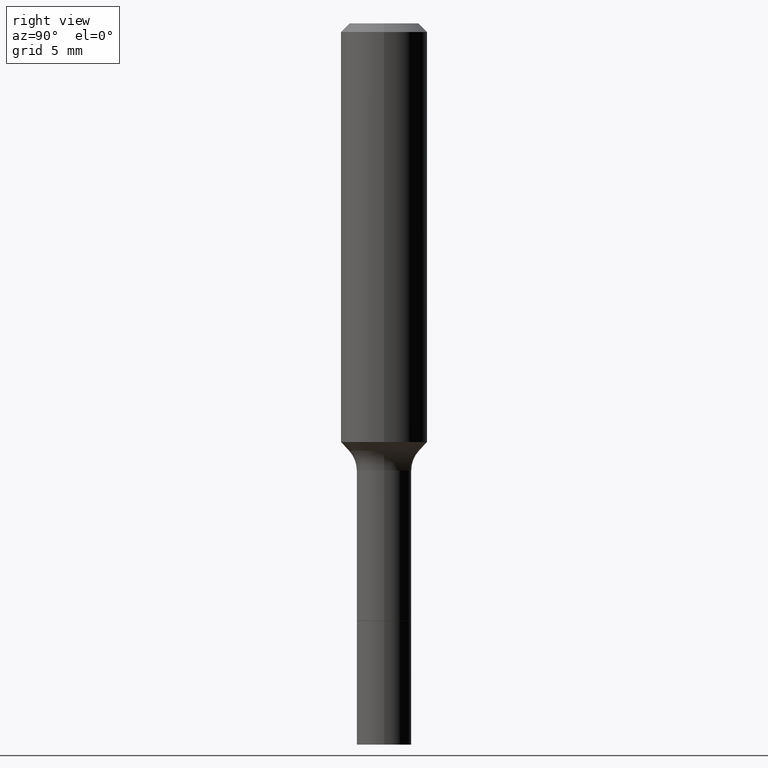
[diagram: clean part render]
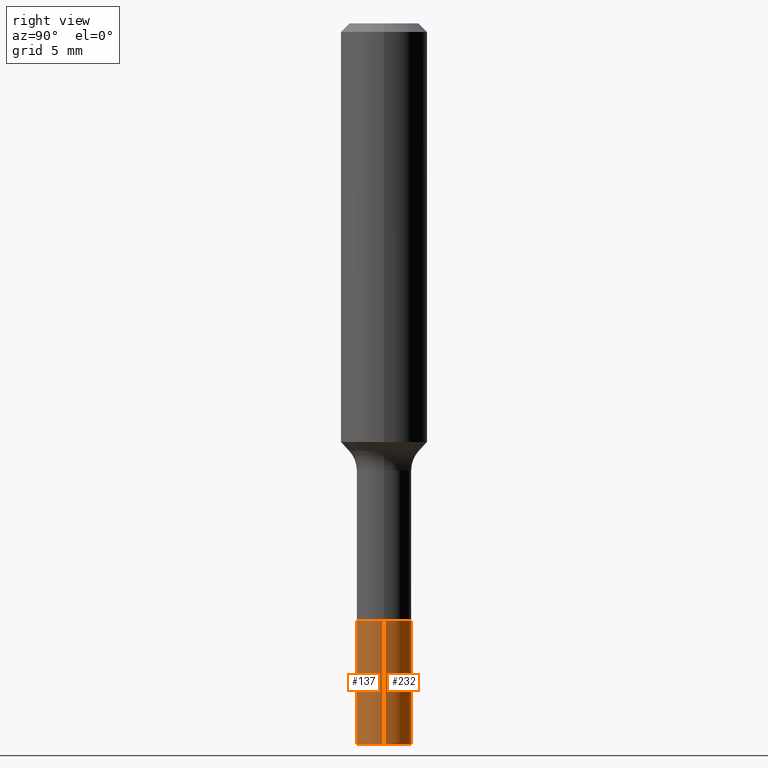
[diagram: same view with one multi-face feature highlighted, each face labeled with its STEP entity id]
A machine part, right view. The highlighted faces form ONE feature: a constant-radius fillet chain: 2 tangent blend faces with common blend radius 1.8986 mm. The faces share edges in the B-rep.
Their STEP definitions:
[1] entity #232 (Cylinder):
#12 = EDGE_LOOP ( 'NONE', ( #112, #114, #436, #51 ) ) ;
#29 = VERTEX_POINT ( 'NONE', #372 ) ;
#34 = DIRECTION ( 'NONE',  ( -2.445468806185136877E-29, 3.491481338843145188E-15, 1.000000000000000000 ) ) ;
#51 = ORIENTED_EDGE ( 'NONE', *, *, #128, .F. ) ;
#64 = CARTESIAN_POINT ( 'NONE',  ( -0.07474999999999999700, -5.161729628003073983E-15, -1.630500000000000060 ) ) ;
#67 = CYLINDRICAL_SURFACE ( 'NONE', #388, 0.07474999999999999700 ) ;
#70 = DIRECTION ( 'NONE',  ( 1.000000000000000000, -6.982962677686271444E-15, 0.000000000000000000 ) ) ;
#72 = LINE ( 'NONE', #64, #174 ) ;
#74 = CARTESIAN_POINT ( 'NONE',  ( 0.07474999999999999700, -7.394957475669780996E-15, -1.968500000000000139 ) ) ;
#76 = VERTEX_POINT ( 'NONE', #497 ) ;
#81 = VERTEX_POINT ( 'NONE', #185 ) ;
#88 = AXIS2_PLACEMENT_3D ( 'NONE', #235, #515, #89 ) ;
#89 = DIRECTION ( 'NONE',  ( 1.000000000000000000, -6.982962677686271444E-15, 0.000000000000000000 ) ) ;
#103 = FACE_OUTER_BOUND ( 'NONE', #12, .T. ) ;
#112 = ORIENTED_EDGE ( 'NONE', *, *, #145, .T. ) ;
#114 = ORIENTED_EDGE ( 'NONE', *, *, #496, .T. ) ;
#128 = EDGE_CURVE ( 'NONE', #361, #29, #419, .T. ) ;
#145 = EDGE_CURVE ( 'NONE', #361, #76, #500, .T. ) ;
#148 = CARTESIAN_POINT ( 'NONE',  ( 4.813905344975441835E-29, -6.872981015512731707E-15, -1.968500000000000139 ) ) ;
#160 = AXIS2_PLACEMENT_3D ( 'NONE', #148, #220, #183 ) ;
#174 = VECTOR ( 'NONE', #34, 39.37007874015748143 ) ;
#183 = DIRECTION ( 'NONE',  ( 1.000000000000000000, -6.982962677686271444E-15, 0.000000000000000000 ) ) ;
#185 = CARTESIAN_POINT ( 'NONE',  ( -0.07474999999999999700, -5.751789974267565855E-15, -1.630500000000000060 ) ) ;
#220 = DIRECTION ( 'NONE',  ( -2.445468806185136597E-29, 3.491481338843145583E-15, 1.000000000000000000 ) ) ;
#226 = CIRCLE ( 'NONE', #88, 0.07474999999999999700 ) ;
#227 = CARTESIAN_POINT ( 'NONE',  ( 3.987336888484864983E-29, -5.692860322983748752E-15, -1.630500000000000060 ) ) ;
#232 = ADVANCED_FACE ( 'NONE', ( #103 ), #67, .T. ) ;
#235 = CARTESIAN_POINT ( 'NONE',  ( 3.987336888484864983E-29, -5.692860322983748752E-15, -1.630500000000000060 ) ) ;
#331 = EDGE_CURVE ( 'NONE', #29, #81, #226, .T. ) ;
#343 = DIRECTION ( 'NONE',  ( -2.445468806185136877E-29, 3.491481338843145188E-15, 1.000000000000000000 ) ) ;
#361 = VERTEX_POINT ( 'NONE', #74 ) ;
#372 = CARTESIAN_POINT ( 'NONE',  ( 0.07474999999999999700, -6.214836783140797252E-15, -1.630500000000000060 ) ) ;
#381 = DIRECTION ( 'NONE',  ( -2.445468806185136597E-29, 3.491481338843145583E-15, 1.000000000000000000 ) ) ;
#388 = AXIS2_PLACEMENT_3D ( 'NONE', #227, #381, #70 ) ;
#419 = LINE ( 'NONE', #511, #474 ) ;
#436 = ORIENTED_EDGE ( 'NONE', *, *, #331, .F. ) ;
#474 = VECTOR ( 'NONE', #343, 39.37007874015748143 ) ;
#496 = EDGE_CURVE ( 'NONE', #76, #81, #72, .T. ) ;
#497 = CARTESIAN_POINT ( 'NONE',  ( -0.07474999999999999700, -5.751789974267565855E-15, -1.968500000000000139 ) ) ;
#500 = CIRCLE ( 'NONE', #160, 0.07474999999999999700 ) ;
#511 = CARTESIAN_POINT ( 'NONE',  ( 0.07474999999999999700, -6.214836783140797252E-15, -1.630500000000000060 ) ) ;
#515 = DIRECTION ( 'NONE',  ( -2.445468806185136597E-29, 3.491481338843145583E-15, 1.000000000000000000 ) ) ;
[2] entity #137 (Cylinder):
#3 = CIRCLE ( 'NONE', #172, 0.07474999999999999700 ) ;
#7 = EDGE_LOOP ( 'NONE', ( #273, #212, #394, #423 ) ) ;
#24 = DIRECTION ( 'NONE',  ( -2.445468806185136597E-29, 3.491481338843145583E-15, 1.000000000000000000 ) ) ;
#29 = VERTEX_POINT ( 'NONE', #372 ) ;
#33 = DIRECTION ( 'NONE',  ( 1.000000000000000000, -6.982962677686271444E-15, 0.000000000000000000 ) ) ;
#34 = DIRECTION ( 'NONE',  ( -2.445468806185136877E-29, 3.491481338843145188E-15, 1.000000000000000000 ) ) ;
#62 = FACE_OUTER_BOUND ( 'NONE', #7, .T. ) ;
#64 = CARTESIAN_POINT ( 'NONE',  ( -0.07474999999999999700, -5.161729628003073983E-15, -1.630500000000000060 ) ) ;
#72 = LINE ( 'NONE', #64, #174 ) ;
#74 = CARTESIAN_POINT ( 'NONE',  ( 0.07474999999999999700, -7.394957475669780996E-15, -1.968500000000000139 ) ) ;
#76 = VERTEX_POINT ( 'NONE', #497 ) ;
#81 = VERTEX_POINT ( 'NONE', #185 ) ;
#128 = EDGE_CURVE ( 'NONE', #361, #29, #419, .T. ) ;
#137 = ADVANCED_FACE ( 'NONE', ( #62 ), #430, .T. ) ;
#144 = DIRECTION ( 'NONE',  ( 1.000000000000000000, -6.982962677686271444E-15, 0.000000000000000000 ) ) ;
#172 = AXIS2_PLACEMENT_3D ( 'NONE', #230, #383, #33 ) ;
#174 = VECTOR ( 'NONE', #34, 39.37007874015748143 ) ;
#185 = CARTESIAN_POINT ( 'NONE',  ( -0.07474999999999999700, -5.751789974267565855E-15, -1.630500000000000060 ) ) ;
#212 = ORIENTED_EDGE ( 'NONE', *, *, #506, .T. ) ;
#221 = CARTESIAN_POINT ( 'NONE',  ( 3.987336888484864983E-29, -5.692860322983748752E-15, -1.630500000000000060 ) ) ;
#230 = CARTESIAN_POINT ( 'NONE',  ( 3.987336888484864983E-29, -5.692860322983748752E-15, -1.630500000000000060 ) ) ;
#257 = EDGE_CURVE ( 'NONE', #81, #29, #3, .T. ) ;
#273 = ORIENTED_EDGE ( 'NONE', *, *, #496, .F. ) ;
#303 = CARTESIAN_POINT ( 'NONE',  ( 4.813905344975441835E-29, -6.872981015512731707E-15, -1.968500000000000139 ) ) ;
#338 = DIRECTION ( 'NONE',  ( 1.000000000000000000, -6.982962677686271444E-15, 0.000000000000000000 ) ) ;
#343 = DIRECTION ( 'NONE',  ( -2.445468806185136877E-29, 3.491481338843145188E-15, 1.000000000000000000 ) ) ;
#361 = VERTEX_POINT ( 'NONE', #74 ) ;
#372 = CARTESIAN_POINT ( 'NONE',  ( 0.07474999999999999700, -6.214836783140797252E-15, -1.630500000000000060 ) ) ;
#383 = DIRECTION ( 'NONE',  ( -2.445468806185136597E-29, 3.491481338843145583E-15, 1.000000000000000000 ) ) ;
#394 = ORIENTED_EDGE ( 'NONE', *, *, #128, .T. ) ;
#419 = LINE ( 'NONE', #511, #474 ) ;
#423 = ORIENTED_EDGE ( 'NONE', *, *, #257, .F. ) ;
#430 = CYLINDRICAL_SURFACE ( 'NONE', #433, 0.07474999999999999700 ) ;
#433 = AXIS2_PLACEMENT_3D ( 'NONE', #221, #460, #338 ) ;
#449 = CIRCLE ( 'NONE', #461, 0.07474999999999999700 ) ;
#460 = DIRECTION ( 'NONE',  ( -2.445468806185136597E-29, 3.491481338843145583E-15, 1.000000000000000000 ) ) ;
#461 = AXIS2_PLACEMENT_3D ( 'NONE', #303, #24, #144 ) ;
#474 = VECTOR ( 'NONE', #343, 39.37007874015748143 ) ;
#496 = EDGE_CURVE ( 'NONE', #76, #81, #72, .T. ) ;
#497 = CARTESIAN_POINT ( 'NONE',  ( -0.07474999999999999700, -5.751789974267565855E-15, -1.968500000000000139 ) ) ;
#506 = EDGE_CURVE ( 'NONE', #76, #361, #449, .T. ) ;
#511 = CARTESIAN_POINT ( 'NONE',  ( 0.07474999999999999700, -6.214836783140797252E-15, -1.630500000000000060 ) ) ;